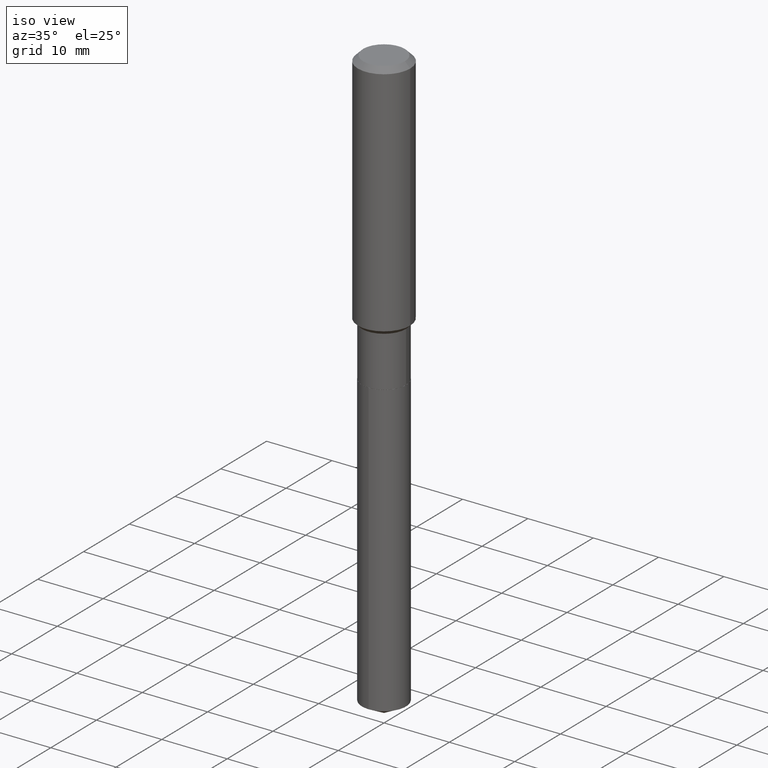
[diagram: clean part render]
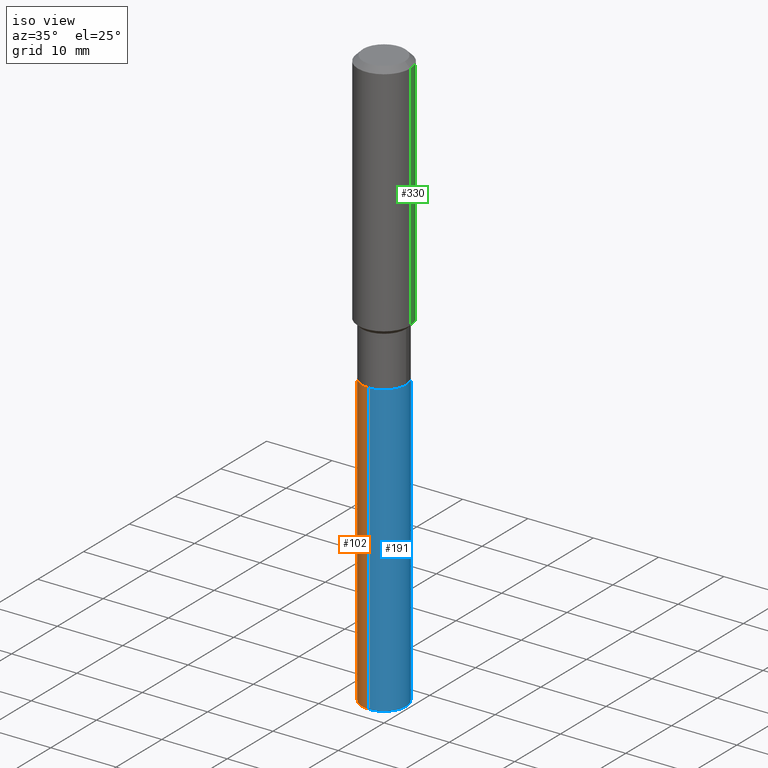
[diagram: same view with three faces highlighted in distinct colors, each labeled with its STEP entity id]
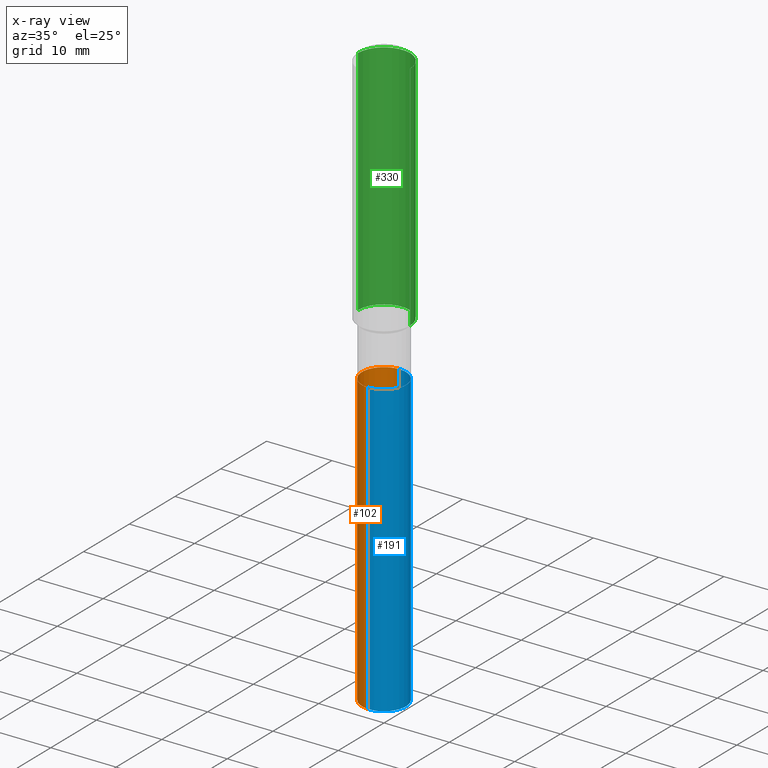
[diagram: x-ray of the same camera — body ghosted, the three highlighted faces saturated]
A machine part, iso view with three faces highlighted in distinct colors.
The next image is the same camera in x-ray (body ghosted, the three faces saturated) — at least one of them is partly hidden behind the body in this view.
Their STEP definitions:

[orange] entity #102 — the highlighted cylindrical surface (edge-blend (fillet) strip) has radius 3.3731 mm, axis along (-0, 0, 1).
#17 = DIRECTION ( 'NONE',  ( -2.445307825869915772E-29, 3.491711871816972429E-15, 1.000000000000000000 ) ) ;
#20 = ORIENTED_EDGE ( 'NONE', *, *, #251, .T. ) ;
#35 = ORIENTED_EDGE ( 'NONE', *, *, #316, .F. ) ;
#51 = DIRECTION ( 'NONE',  ( -6.982962677686265133E-15, -1.000000000000000000, 4.114228906120878260E-15 ) ) ;
#74 = CIRCLE ( 'NONE', #156, 0.1328000000000000014 ) ;
#88 = CYLINDRICAL_SURFACE ( 'NONE', #299, 0.1328000000000000014 ) ;
#89 = CARTESIAN_POINT ( 'NONE',  ( -9.273374435966502365E-16, -0.1328000000000122416, -3.512388987475355773 ) ) ;
#93 = CARTESIAN_POINT ( 'NONE',  ( -9.273374435966930322E-16, -0.1328000000000061354, -1.761599999999999389 ) ) ;
#100 = CARTESIAN_POINT ( 'NONE',  ( 9.436007530894992397E-16, 0.1327999999999938674, -1.761600000000000499 ) ) ;
#102 = ADVANCED_FACE ( 'NONE', ( #430 ), #88, .T. ) ;
#105 = VERTEX_POINT ( 'NONE', #89 ) ;
#110 = DIRECTION ( 'NONE',  ( -6.982962677686265133E-15, -1.000000000000000000, 4.114228906120878260E-15 ) ) ;
#138 = VERTEX_POINT ( 'NONE', #93 ) ;
#150 = LINE ( 'NONE', #487, #152 ) ;
#152 = VECTOR ( 'NONE', #224, 39.37007874015748143 ) ;
#156 = AXIS2_PLACEMENT_3D ( 'NONE', #486, #451, #110 ) ;
#166 = AXIS2_PLACEMENT_3D ( 'NONE', #434, #17, #289 ) ;
#213 = EDGE_LOOP ( 'NONE', ( #35, #20, #379, #438 ) ) ;
#224 = DIRECTION ( 'NONE',  ( -2.445307825869916052E-29, 3.491711871816972429E-15, 1.000000000000000000 ) ) ;
#236 = DIRECTION ( 'NONE',  ( -2.445307825869915772E-29, 3.491711871816972429E-15, 1.000000000000000000 ) ) ;
#251 = EDGE_CURVE ( 'NONE', #339, #105, #476, .T. ) ;
#255 = VERTEX_POINT ( 'NONE', #100 ) ;
#283 = CARTESIAN_POINT ( 'NONE',  ( 4.307937848975736097E-29, -6.150593526506084343E-15, -1.761599999999999833 ) ) ;
#284 = LINE ( 'NONE', #465, #311 ) ;
#289 = DIRECTION ( 'NONE',  ( -6.982962677686265133E-15, -1.000000000000000000, 4.114228906120878260E-15 ) ) ;
#299 = AXIS2_PLACEMENT_3D ( 'NONE', #283, #236, #51 ) ;
#311 = VECTOR ( 'NONE', #439, 39.37007874015748143 ) ;
#316 = EDGE_CURVE ( 'NONE', #339, #255, #150, .T. ) ;
#338 = CARTESIAN_POINT ( 'NONE',  ( 9.436007530894986480E-16, 0.1327999999999877334, -3.512388987475356661 ) ) ;
#339 = VERTEX_POINT ( 'NONE', #338 ) ;
#363 = EDGE_CURVE ( 'NONE', #255, #138, #74, .T. ) ;
#379 = ORIENTED_EDGE ( 'NONE', *, *, #418, .T. ) ;
#418 = EDGE_CURVE ( 'NONE', #105, #138, #284, .T. ) ;
#430 = FACE_OUTER_BOUND ( 'NONE', #213, .T. ) ;
#434 = CARTESIAN_POINT ( 'NONE',  ( 8.589155861496090582E-29, -1.226384421912020250E-14, -3.512388987475356217 ) ) ;
#438 = ORIENTED_EDGE ( 'NONE', *, *, #363, .F. ) ;
#439 = DIRECTION ( 'NONE',  ( -2.445307825869916052E-29, 3.491711871816972429E-15, 1.000000000000000000 ) ) ;
#451 = DIRECTION ( 'NONE',  ( -2.445307825869915772E-29, 3.491711871816972429E-15, 1.000000000000000000 ) ) ;
#465 = CARTESIAN_POINT ( 'NONE',  ( -9.273374435966930322E-16, -0.1328000000000061354, -1.761599999999999389 ) ) ;
#476 = CIRCLE ( 'NONE', #166, 0.1328000000000000014 ) ;
#486 = CARTESIAN_POINT ( 'NONE',  ( 4.307937848975736097E-29, -6.150593526506084343E-15, -1.761599999999999833 ) ) ;
#487 = CARTESIAN_POINT ( 'NONE',  ( 9.436007530894560495E-16, 0.1327999999999938396, -1.761600000000000499 ) ) ;

[blue] entity #191 — the highlighted cylindrical surface (edge-blend (fillet) strip) has radius 3.3731 mm, axis along (-0, 0, 1).
#8 = CARTESIAN_POINT ( 'NONE',  ( 4.307937848975736097E-29, -6.150593526506084343E-15, -1.761599999999999833 ) ) ;
#38 = ORIENTED_EDGE ( 'NONE', *, *, #273, .T. ) ;
#49 = AXIS2_PLACEMENT_3D ( 'NONE', #483, #258, #409 ) ;
#52 = DIRECTION ( 'NONE',  ( -2.445307825869915772E-29, 3.491711871816972429E-15, 1.000000000000000000 ) ) ;
#80 = AXIS2_PLACEMENT_3D ( 'NONE', #359, #132, #287 ) ;
#89 = CARTESIAN_POINT ( 'NONE',  ( -9.273374435966502365E-16, -0.1328000000000122416, -3.512388987475355773 ) ) ;
#93 = CARTESIAN_POINT ( 'NONE',  ( -9.273374435966930322E-16, -0.1328000000000061354, -1.761599999999999389 ) ) ;
#100 = CARTESIAN_POINT ( 'NONE',  ( 9.436007530894992397E-16, 0.1327999999999938674, -1.761600000000000499 ) ) ;
#105 = VERTEX_POINT ( 'NONE', #89 ) ;
#108 = ORIENTED_EDGE ( 'NONE', *, *, #316, .T. ) ;
#113 = CIRCLE ( 'NONE', #183, 0.1328000000000000014 ) ;
#132 = DIRECTION ( 'NONE',  ( -2.445307825869915772E-29, 3.491711871816972429E-15, 1.000000000000000000 ) ) ;
#138 = VERTEX_POINT ( 'NONE', #93 ) ;
#150 = LINE ( 'NONE', #487, #152 ) ;
#152 = VECTOR ( 'NONE', #224, 39.37007874015748143 ) ;
#159 = DIRECTION ( 'NONE',  ( -6.982962677686265133E-15, -1.000000000000000000, 4.114228906120878260E-15 ) ) ;
#183 = AXIS2_PLACEMENT_3D ( 'NONE', #8, #52, #159 ) ;
#191 = ADVANCED_FACE ( 'NONE', ( #329 ), #204, .T. ) ;
#204 = CYLINDRICAL_SURFACE ( 'NONE', #80, 0.1328000000000000014 ) ;
#224 = DIRECTION ( 'NONE',  ( -2.445307825869916052E-29, 3.491711871816972429E-15, 1.000000000000000000 ) ) ;
#255 = VERTEX_POINT ( 'NONE', #100 ) ;
#258 = DIRECTION ( 'NONE',  ( -2.445307825869915772E-29, 3.491711871816972429E-15, 1.000000000000000000 ) ) ;
#273 = EDGE_CURVE ( 'NONE', #105, #339, #313, .T. ) ;
#284 = LINE ( 'NONE', #465, #311 ) ;
#287 = DIRECTION ( 'NONE',  ( -6.982962677686265133E-15, -1.000000000000000000, 4.114228906120878260E-15 ) ) ;
#311 = VECTOR ( 'NONE', #439, 39.37007874015748143 ) ;
#313 = CIRCLE ( 'NONE', #49, 0.1328000000000000014 ) ;
#316 = EDGE_CURVE ( 'NONE', #339, #255, #150, .T. ) ;
#329 = FACE_OUTER_BOUND ( 'NONE', #362, .T. ) ;
#338 = CARTESIAN_POINT ( 'NONE',  ( 9.436007530894986480E-16, 0.1327999999999877334, -3.512388987475356661 ) ) ;
#339 = VERTEX_POINT ( 'NONE', #338 ) ;
#359 = CARTESIAN_POINT ( 'NONE',  ( 4.307937848975736097E-29, -6.150593526506084343E-15, -1.761599999999999833 ) ) ;
#362 = EDGE_LOOP ( 'NONE', ( #38, #108, #443, #401 ) ) ;
#401 = ORIENTED_EDGE ( 'NONE', *, *, #418, .F. ) ;
#409 = DIRECTION ( 'NONE',  ( -6.982962677686265133E-15, -1.000000000000000000, 4.114228906120878260E-15 ) ) ;
#418 = EDGE_CURVE ( 'NONE', #105, #138, #284, .T. ) ;
#439 = DIRECTION ( 'NONE',  ( -2.445307825869916052E-29, 3.491711871816972429E-15, 1.000000000000000000 ) ) ;
#443 = ORIENTED_EDGE ( 'NONE', *, *, #484, .F. ) ;
#465 = CARTESIAN_POINT ( 'NONE',  ( -9.273374435966930322E-16, -0.1328000000000061354, -1.761599999999999389 ) ) ;
#483 = CARTESIAN_POINT ( 'NONE',  ( 8.589155861496090582E-29, -1.226384421912020250E-14, -3.512388987475356217 ) ) ;
#484 = EDGE_CURVE ( 'NONE', #138, #255, #113, .T. ) ;
#487 = CARTESIAN_POINT ( 'NONE',  ( 9.436007530894560495E-16, 0.1327999999999938396, -1.761600000000000499 ) ) ;

[green] entity #330 — the highlighted cylindrical surface (edge-blend (fillet) strip) has radius 4.0005 mm, axis along (-0, 0, 1).
#7 = CARTESIAN_POINT ( 'NONE',  ( 3.500688596054023043E-29, -4.998055536553962721E-15, -1.431499999999999995 ) ) ;
#9 = EDGE_CURVE ( 'NONE', #123, #133, #199, .T. ) ;
#31 = VERTEX_POINT ( 'NONE', #345 ) ;
#39 = VECTOR ( 'NONE', #490, 39.37007874015748143 ) ;
#73 = EDGE_CURVE ( 'NONE', #231, #123, #175, .T. ) ;
#78 = DIRECTION ( 'NONE',  ( 1.000000000000000000, -6.982962677686265922E-15, 0.000000000000000000 ) ) ;
#107 = DIRECTION ( 'NONE',  ( 1.000000000000000000, -6.982962677686267499E-15, 4.876176775795936353E-29 ) ) ;
#114 = ORIENTED_EDGE ( 'NONE', *, *, #385, .F. ) ;
#117 = DIRECTION ( 'NONE',  ( -2.445468806185136877E-29, 3.491481338843145188E-15, 1.000000000000000000 ) ) ;
#123 = VERTEX_POINT ( 'NONE', #245 ) ;
#133 = VERTEX_POINT ( 'NONE', #209 ) ;
#143 = VECTOR ( 'NONE', #117, 39.37007874015748143 ) ;
#147 = CARTESIAN_POINT ( 'NONE',  ( 0.000000000000000000, 0.000000000000000000, 0.000000000000000000 ) ) ;
#168 = DIRECTION ( 'NONE',  ( 1.000000000000000000, -6.982962677686267499E-15, 0.000000000000000000 ) ) ;
#175 = CIRCLE ( 'NONE', #458, 0.1575000000000001676 ) ;
#184 = LINE ( 'NONE', #304, #39 ) ;
#199 = LINE ( 'NONE', #354, #143 ) ;
#203 = AXIS2_PLACEMENT_3D ( 'NONE', #411, #417, #78 ) ;
#209 = CARTESIAN_POINT ( 'NONE',  ( -0.1575000000000000011, -1.434913790541602697E-15, -0.03150000000000019451 ) ) ;
#216 = CYLINDRICAL_SURFACE ( 'NONE', #419, 0.1575000000000000844 ) ;
#220 = FACE_OUTER_BOUND ( 'NONE', #460, .T. ) ;
#231 = VERTEX_POINT ( 'NONE', #334 ) ;
#245 = CARTESIAN_POINT ( 'NONE',  ( -0.1575000000000001676, -3.878950727731804329E-15, -1.431499999999999995 ) ) ;
#247 = ORIENTED_EDGE ( 'NONE', *, *, #73, .T. ) ;
#288 = ORIENTED_EDGE ( 'NONE', *, *, #9, .T. ) ;
#301 = DIRECTION ( 'NONE',  ( -2.445468806185136597E-29, 3.491481338843145583E-15, 1.000000000000000000 ) ) ;
#304 = CARTESIAN_POINT ( 'NONE',  ( 0.1575000000000000844, -1.099816621735587677E-15, 7.679978421878603638E-30 ) ) ;
#319 = CIRCLE ( 'NONE', #203, 0.1575000000000000011 ) ;
#330 = ADVANCED_FACE ( 'NONE', ( #220 ), #216, .T. ) ;
#334 = CARTESIAN_POINT ( 'NONE',  ( 0.1575000000000001676, -6.097872158289550991E-15, -1.431499999999999995 ) ) ;
#345 = CARTESIAN_POINT ( 'NONE',  ( 0.1575000000000000011, -1.209798283909146741E-15, -0.03150000000000019451 ) ) ;
#351 = EDGE_CURVE ( 'NONE', #231, #31, #184, .T. ) ;
#352 = DIRECTION ( 'NONE',  ( -2.445468806185136597E-29, 3.491481338843145583E-15, 1.000000000000000000 ) ) ;
#354 = CARTESIAN_POINT ( 'NONE',  ( -0.1575000000000000844, 1.119104808822158392E-15, -7.747322767151481189E-30 ) ) ;
#380 = ORIENTED_EDGE ( 'NONE', *, *, #351, .F. ) ;
#385 = EDGE_CURVE ( 'NONE', #31, #133, #319, .T. ) ;
#411 = CARTESIAN_POINT ( 'NONE',  ( 7.703226739483228723E-31, -1.099816621735597661E-16, -0.03150000000000019451 ) ) ;
#417 = DIRECTION ( 'NONE',  ( -2.445468806185136597E-29, 3.491481338843145583E-15, 1.000000000000000000 ) ) ;
#419 = AXIS2_PLACEMENT_3D ( 'NONE', #147, #301, #107 ) ;
#458 = AXIS2_PLACEMENT_3D ( 'NONE', #7, #352, #168 ) ;
#460 = EDGE_LOOP ( 'NONE', ( #247, #288, #114, #380 ) ) ;
#490 = DIRECTION ( 'NONE',  ( -2.445468806185136877E-29, 3.491481338843145188E-15, 1.000000000000000000 ) ) ;